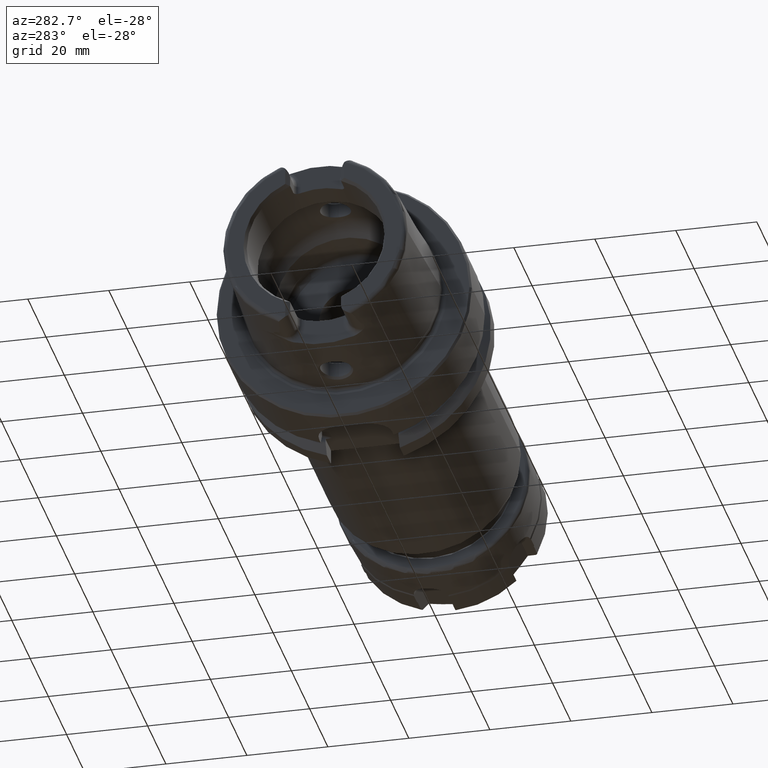
[diagram: clean part render]
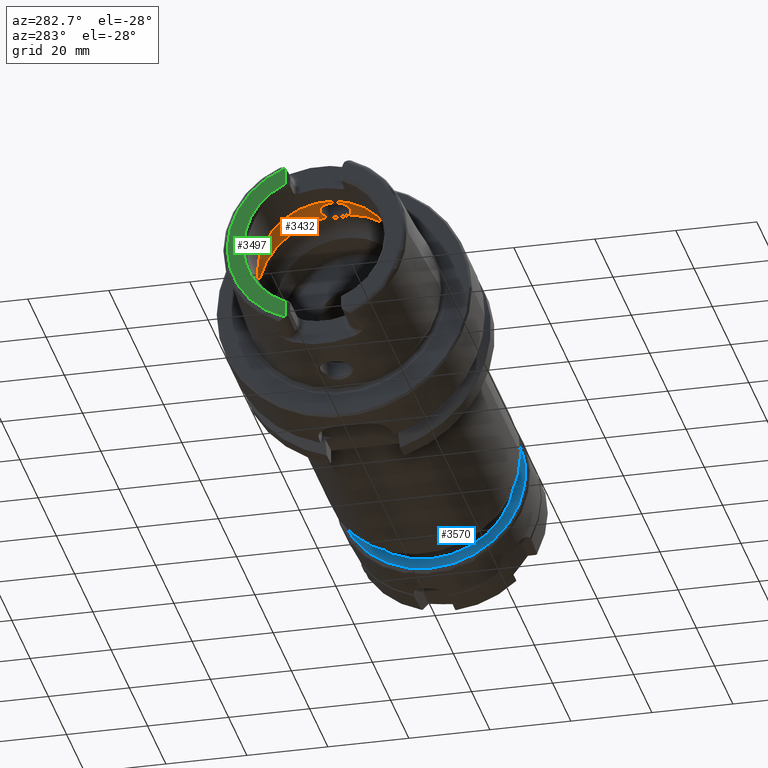
[diagram: same view with three faces highlighted in distinct colors, each labeled with its STEP entity id]
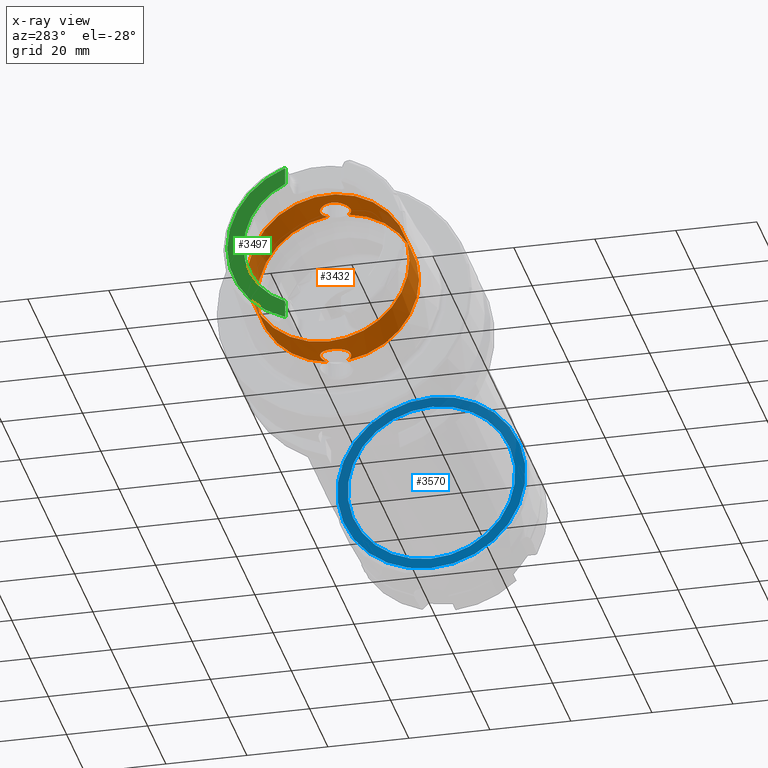
[diagram: x-ray of the same camera — body ghosted, the three highlighted faces saturated]
A machine part, auxiliary view with three faces highlighted in distinct colors.
The next image is the same camera in x-ray (body ghosted, the three faces saturated) — at least one of them is partly hidden behind the body in this view.
Their STEP definitions:

[orange] entity #3432 — the highlighted cylindrical surface (bore or boss wall) has radius 20 mm, axis along (-1, 0, 0).
#104=B_SPLINE_CURVE_WITH_KNOTS('',3,(#5743,#5744,#5745,#5746,#5747,#5748,
#5749,#5750,#5751,#5752,#5753,#5754,#5755,#5756,#5757,#5758,#5759,#5760,
#5761,#5762,#5763,#5764,#5765,#5766,#5767,#5768,#5769,#5770,#5771,#5772,
#5773),.UNSPECIFIED.,.F.,.F.,(4,2,2,2,2,2,2,2,2,2,2,3,2,2,4),(-1.43107314142755,
-1.4161913421645,-1.27456976724955,-1.1329481923346,-0.991326617419658,
-0.849705042504712,-0.708089569336007,-0.566474096167302,-0.424858622998598,
-0.283243149829893,-0.141621574914946,0.,0.141621574914946,0.283243149829893,
0.298124949100151),.UNSPECIFIED.);
#109=B_SPLINE_CURVE_WITH_KNOTS('',3,(#5912,#5913,#5914,#5915,#5916,#5917,
#5918,#5919,#5920,#5921,#5922,#5923,#5924,#5925,#5926,#5927,#5928,#5929,
#5930,#5931,#5932,#5933,#5934,#5935,#5936,#5937,#5938,#5939,#5940,#5941,
#5942),.UNSPECIFIED.,.F.,.F.,(4,2,2,3,2,2,2,2,2,2,2,2,2,2,4),(-0.298124949092949,
-0.283243149829893,-0.141621574914946,0.,0.141621574914946,0.283243149829893,
0.424858622998598,0.566474096167302,0.708089569336007,0.849705042504712,
0.991326617419658,1.1329481923346,1.27456976724955,1.4161913421645,1.43107314143475),
 .UNSPECIFIED.);
#305=CYLINDRICAL_SURFACE('',#3757,20.);
#383=FACE_OUTER_BOUND('',#589,.T.);
#589=EDGE_LOOP('',(#2462,#2463,#2464,#2465,#2466,#2467,#2468,#2469,#2470));
#811=LINE('',#5958,#997);
#997=VECTOR('',#4329,20.);
#1190=CIRCLE('',#3758,20.);
#1191=CIRCLE('',#3759,20.);
#1192=CIRCLE('',#3760,20.);
#1193=CIRCLE('',#3761,20.);
#1194=CIRCLE('',#3762,20.);
#1448=VERTEX_POINT('',#5729);
#1449=VERTEX_POINT('',#5742);
#1452=VERTEX_POINT('',#5897);
#1454=VERTEX_POINT('',#5911);
#1455=VERTEX_POINT('',#5955);
#1456=VERTEX_POINT('',#5957);
#1457=VERTEX_POINT('',#5959);
#1837=EDGE_CURVE('',#1449,#1448,#104,.T.);
#1843=EDGE_CURVE('',#1454,#1452,#109,.T.);
#1846=EDGE_CURVE('',#1455,#1452,#1190,.T.);
#1847=EDGE_CURVE('',#1455,#1456,#811,.T.);
#1848=EDGE_CURVE('',#1456,#1457,#1191,.T.);
#1849=EDGE_CURVE('',#1457,#1456,#1192,.T.);
#1850=EDGE_CURVE('',#1449,#1455,#1193,.T.);
#1851=EDGE_CURVE('',#1454,#1448,#1194,.T.);
#2462=ORIENTED_EDGE('',*,*,#1843,.T.);
#2463=ORIENTED_EDGE('',*,*,#1846,.F.);
#2464=ORIENTED_EDGE('',*,*,#1847,.T.);
#2465=ORIENTED_EDGE('',*,*,#1848,.T.);
#2466=ORIENTED_EDGE('',*,*,#1849,.T.);
#2467=ORIENTED_EDGE('',*,*,#1847,.F.);
#2468=ORIENTED_EDGE('',*,*,#1850,.F.);
#2469=ORIENTED_EDGE('',*,*,#1837,.T.);
#2470=ORIENTED_EDGE('',*,*,#1851,.F.);
#3432=ADVANCED_FACE('',(#383),#305,.F.);
#3757=AXIS2_PLACEMENT_3D('',#5954,#4325,#4326);
#3758=AXIS2_PLACEMENT_3D('',#5956,#4327,#4328);
#3759=AXIS2_PLACEMENT_3D('',#5960,#4330,#4331);
#3760=AXIS2_PLACEMENT_3D('',#5961,#4332,#4333);
#3761=AXIS2_PLACEMENT_3D('',#5962,#4334,#4335);
#3762=AXIS2_PLACEMENT_3D('',#5963,#4336,#4337);
#4325=DIRECTION('center_axis',(-1.,0.,0.));
#4326=DIRECTION('ref_axis',(0.,1.,0.));
#4327=DIRECTION('center_axis',(-1.,0.,0.));
#4328=DIRECTION('ref_axis',(0.,0.,1.));
#4329=DIRECTION('',(-1.,0.,0.));
#4330=DIRECTION('center_axis',(-1.,0.,0.));
#4331=DIRECTION('ref_axis',(0.,0.,1.));
#4332=DIRECTION('center_axis',(-1.,0.,0.));
#4333=DIRECTION('ref_axis',(0.,0.,1.));
#4334=DIRECTION('center_axis',(-1.,0.,0.));
#4335=DIRECTION('ref_axis',(0.,0.,1.));
#4336=DIRECTION('center_axis',(-1.,0.,0.));
#4337=DIRECTION('ref_axis',(0.,0.,1.));
#5729=CARTESIAN_POINT('',(-6.2449979983984,2.54410376580264,-19.8375284758165));
#5742=CARTESIAN_POINT('',(-6.2449979983984,-2.54410376580264,-19.8375284758165));
#5743=CARTESIAN_POINT('Ctrl Pts',(-6.2449979983984,-2.54410376580264,-19.8375284758165));
#5744=CARTESIAN_POINT('Ctrl Pts',(-6.27894943420456,-2.58086966932454,-19.8328133585216));
#5745=CARTESIAN_POINT('Ctrl Pts',(-6.31342869219743,-2.61672955109653,-19.8281105439642));
#5746=CARTESIAN_POINT('Ctrl Pts',(-6.68067160381732,-2.98397246271642,-19.7789868876592));
#5747=CARTESIAN_POINT('Ctrl Pts',(-7.10159661632629,-3.27238367725626,-19.731429741537));
#5748=CARTESIAN_POINT('Ctrl Pts',(-8.0251754070192,-3.65542701546408,-19.6640704965084));
#5749=CARTESIAN_POINT('Ctrl Pts',(-8.52792808361685,-3.75,-19.6452920568771));
#5750=CARTESIAN_POINT('Ctrl Pts',(-9.47207191638316,-3.75,-19.6452920568771));
#5751=CARTESIAN_POINT('Ctrl Pts',(-9.97482459298081,-3.65542701546408,-19.6640704965084));
#5752=CARTESIAN_POINT('Ctrl Pts',(-10.8984033836737,-3.27238367725626,-19.731429741537));
#5753=CARTESIAN_POINT('Ctrl Pts',(-11.3193283961827,-2.98397246271642,-19.7789868876592));
#5754=CARTESIAN_POINT('Ctrl Pts',(-11.9839581446669,-2.31934271423217,-19.8678900149943));
#5755=CARTESIAN_POINT('Ctrl Pts',(-12.2723805817074,-1.89841159537053,-19.9150796801946));
#5756=CARTESIAN_POINT('Ctrl Pts',(-12.6554320620407,-0.974811677040414,
-19.9815942165963));
#5757=CARTESIAN_POINT('Ctrl Pts',(-12.75,-0.472051577229017,-20.));
#5758=CARTESIAN_POINT('Ctrl Pts',(-12.75,0.472051577229015,-20.));
#5759=CARTESIAN_POINT('Ctrl Pts',(-12.6554320620407,0.974811677040408,-19.9815942165963));
#5760=CARTESIAN_POINT('Ctrl Pts',(-12.2723805817074,1.89841159537052,-19.9150796801946));
#5761=CARTESIAN_POINT('Ctrl Pts',(-11.9839581446669,2.31934271423217,-19.8678900149943));
#5762=CARTESIAN_POINT('Ctrl Pts',(-11.3193283961827,2.98397246271642,-19.7789868876592));
#5763=CARTESIAN_POINT('Ctrl Pts',(-10.8984033836737,3.27238367725626,-19.731429741537));
#5764=CARTESIAN_POINT('Ctrl Pts',(-9.97482459298081,3.65542701546408,-19.6640704965084));
#5765=CARTESIAN_POINT('Ctrl Pts',(-9.47207191638316,3.75,-19.6452920568771));
#5766=CARTESIAN_POINT('Ctrl Pts',(-9.,3.75,-19.6452920568771));
#5767=CARTESIAN_POINT('Ctrl Pts',(-8.52792808361685,3.75,-19.6452920568771));
#5768=CARTESIAN_POINT('Ctrl Pts',(-8.0251754070192,3.65542701546408,-19.6640704965084));
#5769=CARTESIAN_POINT('Ctrl Pts',(-7.10159661632629,3.27238367725626,-19.731429741537));
#5770=CARTESIAN_POINT('Ctrl Pts',(-6.68067160381732,2.98397246271642,-19.7789868876592));
#5771=CARTESIAN_POINT('Ctrl Pts',(-6.31342869218053,2.61672955107963,-19.8281105439665));
#5772=CARTESIAN_POINT('Ctrl Pts',(-6.27894943419011,2.5808696693089,-19.8328133585236));
#5773=CARTESIAN_POINT('Ctrl Pts',(-6.2449979983984,2.54410376580264,-19.8375284758165));
#5897=CARTESIAN_POINT('',(-6.2449979983984,-2.54410376580264,19.8375284758165));
#5911=CARTESIAN_POINT('',(-6.2449979983984,2.54410376580264,19.8375284758165));
#5912=CARTESIAN_POINT('Ctrl Pts',(-6.2449979983984,2.54410376580264,19.8375284758165));
#5913=CARTESIAN_POINT('Ctrl Pts',(-6.27894943420456,2.58086966932454,19.8328133585216));
#5914=CARTESIAN_POINT('Ctrl Pts',(-6.31342869219742,2.61672955109653,19.8281105439642));
#5915=CARTESIAN_POINT('Ctrl Pts',(-6.68067160381731,2.98397246271642,19.7789868876592));
#5916=CARTESIAN_POINT('Ctrl Pts',(-7.10159661632629,3.27238367725626,19.731429741537));
#5917=CARTESIAN_POINT('Ctrl Pts',(-8.02517540701919,3.65542701546408,19.6640704965084));
#5918=CARTESIAN_POINT('Ctrl Pts',(-8.52792808361684,3.75,19.6452920568771));
#5919=CARTESIAN_POINT('Ctrl Pts',(-9.,3.75,19.6452920568771));
#5920=CARTESIAN_POINT('Ctrl Pts',(-9.47207191638315,3.75,19.6452920568771));
#5921=CARTESIAN_POINT('Ctrl Pts',(-9.97482459298081,3.65542701546408,19.6640704965084));
#5922=CARTESIAN_POINT('Ctrl Pts',(-10.8984033836737,3.27238367725626,19.731429741537));
#5923=CARTESIAN_POINT('Ctrl Pts',(-11.3193283961827,2.98397246271642,19.7789868876592));
#5924=CARTESIAN_POINT('Ctrl Pts',(-11.9839581446669,2.31934271423217,19.8678900149943));
#5925=CARTESIAN_POINT('Ctrl Pts',(-12.2723805817074,1.89841159537052,19.9150796801946));
#5926=CARTESIAN_POINT('Ctrl Pts',(-12.6554320620407,0.97481167704041,19.9815942165963));
#5927=CARTESIAN_POINT('Ctrl Pts',(-12.75,0.472051577229015,20.));
#5928=CARTESIAN_POINT('Ctrl Pts',(-12.75,-0.472051577229017,20.));
#5929=CARTESIAN_POINT('Ctrl Pts',(-12.6554320620407,-0.974811677040414,
19.9815942165963));
#5930=CARTESIAN_POINT('Ctrl Pts',(-12.2723805817074,-1.89841159537053,19.9150796801946));
#5931=CARTESIAN_POINT('Ctrl Pts',(-11.9839581446669,-2.31934271423217,19.8678900149943));
#5932=CARTESIAN_POINT('Ctrl Pts',(-11.3193283961827,-2.98397246271642,19.7789868876592));
#5933=CARTESIAN_POINT('Ctrl Pts',(-10.8984033836737,-3.27238367725626,19.731429741537));
#5934=CARTESIAN_POINT('Ctrl Pts',(-9.9748245929808,-3.65542701546408,19.6640704965084));
#5935=CARTESIAN_POINT('Ctrl Pts',(-9.47207191638315,-3.75,19.6452920568771));
#5936=CARTESIAN_POINT('Ctrl Pts',(-8.52792808361684,-3.75,19.6452920568771));
#5937=CARTESIAN_POINT('Ctrl Pts',(-8.02517540701919,-3.65542701546408,19.6640704965084));
#5938=CARTESIAN_POINT('Ctrl Pts',(-7.10159661632629,-3.27238367725626,19.731429741537));
#5939=CARTESIAN_POINT('Ctrl Pts',(-6.68067160381731,-2.98397246271642,19.7789868876592));
#5940=CARTESIAN_POINT('Ctrl Pts',(-6.31342869218052,-2.61672955107963,19.8281105439665));
#5941=CARTESIAN_POINT('Ctrl Pts',(-6.27894943419011,-2.5808696693089,19.8328133585236));
#5942=CARTESIAN_POINT('Ctrl Pts',(-6.2449979983984,-2.54410376580264,19.8375284758165));
#5954=CARTESIAN_POINT('Origin',(-11.5812812165501,0.,0.));
#5955=CARTESIAN_POINT('',(-6.2449979983984,-20.,2.44929359829471E-15));
#5956=CARTESIAN_POINT('Origin',(-6.2449979983984,0.,0.));
#5957=CARTESIAN_POINT('',(-16.9175644347018,-20.,2.44929359829471E-15));
#5958=CARTESIAN_POINT('',(-11.5812812165501,-20.,2.44929359829471E-15));
#5959=CARTESIAN_POINT('',(-16.9175644347018,-2.44929359829471E-15,-20.));
#5960=CARTESIAN_POINT('Origin',(-16.9175644347018,0.,0.));
#5961=CARTESIAN_POINT('Origin',(-16.9175644347018,0.,0.));
#5962=CARTESIAN_POINT('Origin',(-6.2449979983984,0.,0.));
#5963=CARTESIAN_POINT('Origin',(-6.2449979983984,0.,0.));

[blue] entity #3570 — the highlighted planar face has unit normal (-1, 0, 0).
#183=FACE_BOUND('',#733,.T.);
#250=PLANE('',#4026);
#521=FACE_OUTER_BOUND('',#732,.T.);
#732=EDGE_LOOP('',(#3228));
#733=EDGE_LOOP('',(#3229));
#1316=CIRCLE('',#4022,20.7);
#1320=CIRCLE('',#4027,23.25);
#1682=VERTEX_POINT('',#7264);
#1685=VERTEX_POINT('',#7272);
#2207=EDGE_CURVE('',#1682,#1682,#1316,.T.);
#2211=EDGE_CURVE('',#1685,#1685,#1320,.T.);
#3228=ORIENTED_EDGE('',*,*,#2211,.F.);
#3229=ORIENTED_EDGE('',*,*,#2207,.F.);
#3570=ADVANCED_FACE('',(#521,#183),#250,.T.);
#4022=AXIS2_PLACEMENT_3D('',#7265,#4984,#4985);
#4026=AXIS2_PLACEMENT_3D('',#7271,#4992,#4993);
#4027=AXIS2_PLACEMENT_3D('',#7273,#4994,#4995);
#4984=DIRECTION('center_axis',(-1.,0.,0.));
#4985=DIRECTION('ref_axis',(0.,-1.,1.83697019872103E-16));
#4992=DIRECTION('center_axis',(-1.,0.,0.));
#4993=DIRECTION('ref_axis',(0.,0.,1.));
#4994=DIRECTION('center_axis',(1.,0.,0.));
#4995=DIRECTION('ref_axis',(0.,-1.,1.83697019872103E-16));
#7264=CARTESIAN_POINT('',(0.,-2.53501887423502E-15,20.7));
#7265=CARTESIAN_POINT('Origin',(0.,0.,0.));
#7271=CARTESIAN_POINT('Origin',(0.,24.25,0.));
#7272=CARTESIAN_POINT('',(0.,-2.8473038080176E-15,23.25));
#7273=CARTESIAN_POINT('Origin',(0.,0.,0.));

[green] entity #3497 — the highlighted planar face has unit normal (-1, 0, 0).
#225=PLANE('',#3885);
#448=FACE_OUTER_BOUND('',#655,.T.);
#655=EDGE_LOOP('',(#2829,#2830,#2831,#2832,#2833,#2834));
#791=LINE('',#5331,#977);
#801=LINE('',#5424,#987);
#977=VECTOR('',#4249,10.);
#987=VECTOR('',#4287,10.);
#1177=CIRCLE('',#3731,2.88);
#1183=CIRCLE('',#3746,2.88);
#1252=CIRCLE('',#3884,17.5773502691896);
#1253=CIRCLE('',#3886,21.5760400159857);
#1404=VERTEX_POINT('',#5324);
#1407=VERTEX_POINT('',#5329);
#1410=VERTEX_POINT('',#5339);
#1425=VERTEX_POINT('',#5421);
#1426=VERTEX_POINT('',#5423);
#1431=VERTEX_POINT('',#5442);
#1783=EDGE_CURVE('',#1407,#1404,#791,.T.);
#1787=EDGE_CURVE('',#1410,#1404,#1177,.T.);
#1805=EDGE_CURVE('',#1425,#1426,#801,.T.);
#1812=EDGE_CURVE('',#1425,#1431,#1183,.T.);
#2012=EDGE_CURVE('',#1426,#1407,#1252,.T.);
#2013=EDGE_CURVE('',#1410,#1431,#1253,.T.);
#2829=ORIENTED_EDGE('',*,*,#1783,.F.);
#2830=ORIENTED_EDGE('',*,*,#2012,.F.);
#2831=ORIENTED_EDGE('',*,*,#1805,.F.);
#2832=ORIENTED_EDGE('',*,*,#1812,.T.);
#2833=ORIENTED_EDGE('',*,*,#2013,.F.);
#2834=ORIENTED_EDGE('',*,*,#1787,.T.);
#3497=ADVANCED_FACE('',(#448),#225,.T.);
#3731=AXIS2_PLACEMENT_3D('',#5340,#4257,#4258);
#3746=AXIS2_PLACEMENT_3D('',#5455,#4296,#4297);
#3884=AXIS2_PLACEMENT_3D('',#6581,#4639,#4640);
#3885=AXIS2_PLACEMENT_3D('',#6582,#4641,#4642);
#3886=AXIS2_PLACEMENT_3D('',#6583,#4643,#4644);
#4249=DIRECTION('',(0.,0.,-1.));
#4257=DIRECTION('center_axis',(-1.,0.,0.));
#4258=DIRECTION('ref_axis',(0.,-0.453346760926793,0.891334232685576));
#4287=DIRECTION('',(0.,1.58830189502884E-16,-1.));
#4296=DIRECTION('center_axis',(-1.,0.,0.));
#4297=DIRECTION('ref_axis',(0.,1.,0.));
#4639=DIRECTION('center_axis',(-1.,0.,0.));
#4640=DIRECTION('ref_axis',(0.,-1.,0.));
#4641=DIRECTION('center_axis',(-1.,0.,0.));
#4642=DIRECTION('ref_axis',(0.,0.,1.));
#4643=DIRECTION('center_axis',(1.,0.,0.));
#4644=DIRECTION('ref_axis',(0.,0.,-1.));
#5324=CARTESIAN_POINT('',(-32.,7.27,-20.1717424229271));
#5329=CARTESIAN_POINT('',(-32.,7.27,-16.003447831195));
#5331=CARTESIAN_POINT('',(-32.,7.27,-5.5));
#5339=CARTESIAN_POINT('',(-32.,7.39118810947246,-20.2705658801576));
#5340=CARTESIAN_POINT('Origin',(-32.,9.15,-17.99));
#5421=CARTESIAN_POINT('',(-32.,7.27,20.1717424229271));
#5423=CARTESIAN_POINT('',(-32.,7.27,16.003447831195));
#5424=CARTESIAN_POINT('',(-32.,7.27,8.995));
#5442=CARTESIAN_POINT('',(-32.,7.39118810947246,20.2705658801576));
#5455=CARTESIAN_POINT('Origin',(-32.,9.15,17.99));
#6581=CARTESIAN_POINT('Origin',(-32.,0.,0.));
#6582=CARTESIAN_POINT('Origin',(-32.,21.5760400159857,0.));
#6583=CARTESIAN_POINT('Origin',(-32.,0.,0.));